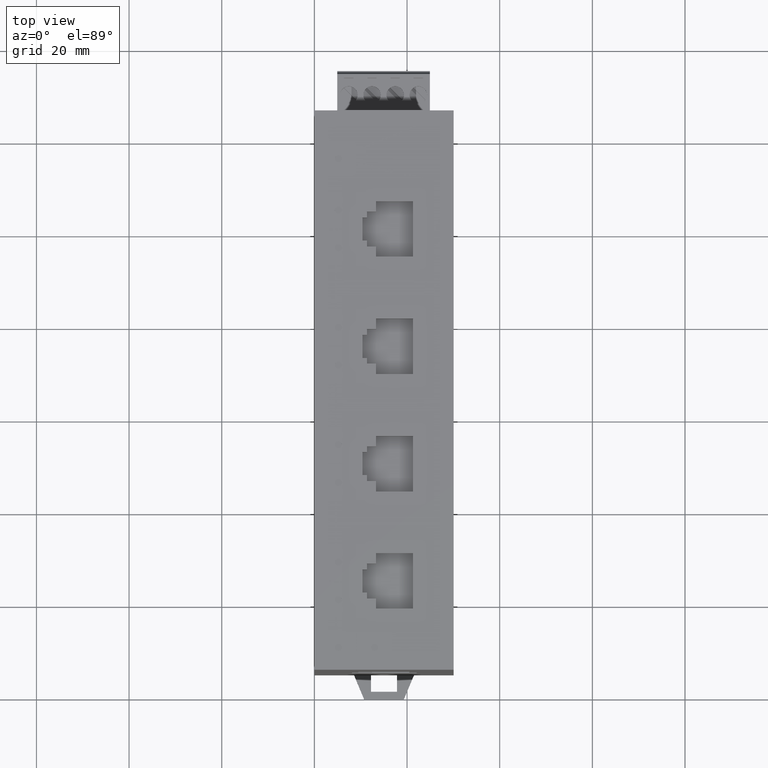
[diagram: clean part render]
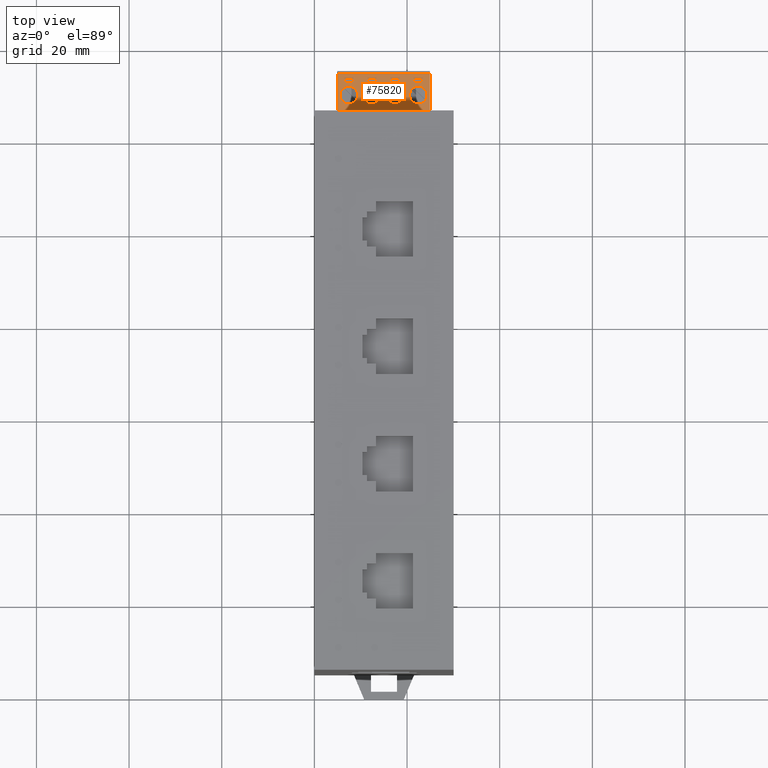
[diagram: same view with one face highlighted and labeled with its STEP entity id]
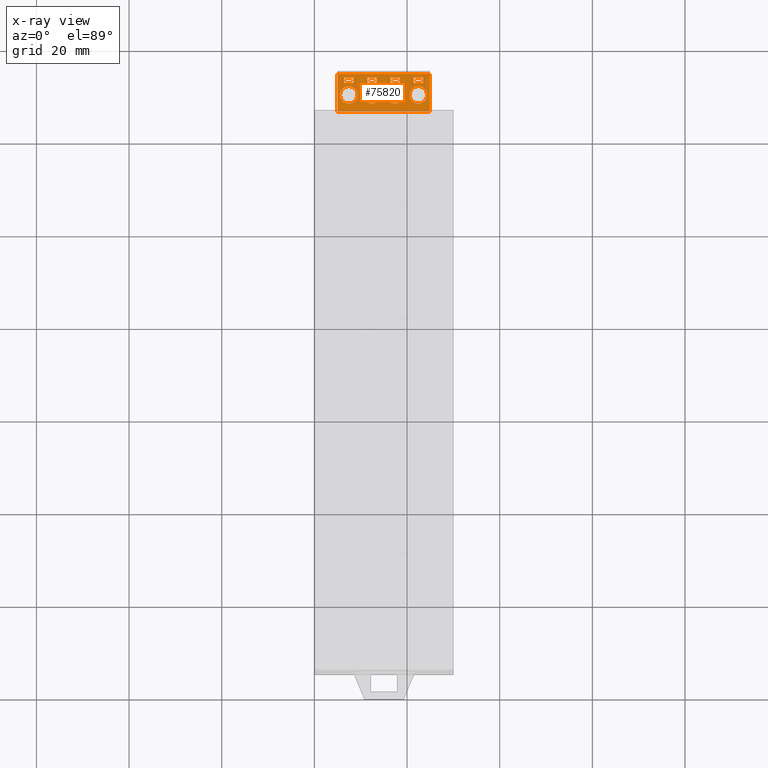
[diagram: x-ray of the same camera — body ghosted, the highlighted face saturated]
A machine part, top view. The second image highlights one B-rep face of the part: STEP entity #75820.
The next image is the same camera in x-ray: the body ghosted, the highlighted face saturated — about 6% of this face is hidden behind the body in this view.
In plain terms, the highlighted planar face has unit normal (-0, 0, -1).
Its self-contained STEP definition (entity closure, byte-faithful):
#49080=CARTESIAN_POINT('',(-36.5173015753009,61.9578968167968,
-28.209999993));
#49090=VERTEX_POINT('',#49080);
#49120=CARTESIAN_POINT('',(-34.6173015753009,61.9578968167968,
-28.209999993));
#49130=DIRECTION('',(-1.11022302462516E-16,6.6822090395713E-16,-1.));
#49140=DIRECTION('',(-1.,1.56125112837911E-17,1.11022302462516E-16));
#49150=AXIS2_PLACEMENT_3D('',#49120,#49130,#49140);
#49160=CIRCLE('',#49150,1.9);
#49170=CARTESIAN_POINT('',(-32.7173015753009,61.9578968167968,
-28.209999993));
#49180=VERTEX_POINT('',#49170);
#49190=EDGE_CURVE('',#49090,#49180,#49160,.T.);
#52170=CARTESIAN_POINT('',(-22.1173015753009,58.3578968167968,
-28.209999993));
#52180=VERTEX_POINT('',#52170);
#52210=CARTESIAN_POINT('',(-22.1173015753009,58.980295899349,
-28.209999993));
#52220=DIRECTION('',(1.56125112837912E-17,1.,6.6822090395713E-16));
#52230=VECTOR('',#52220,1.);
#52240=LINE('',#52210,#52230);
#52250=CARTESIAN_POINT('',(-22.1173015753009,66.4951511096155,
-28.209999993));
#52260=VERTEX_POINT('',#52250);
#52270=EDGE_CURVE('',#52180,#52260,#52240,.T.);
#54150=CARTESIAN_POINT('',(-42.1173015753009,58.3578968167968,
-28.209999993));
#54160=VERTEX_POINT('',#54150);
#54190=CARTESIAN_POINT('',(-32.3532757178843,58.3578968167968,
-28.209999993));
#54200=DIRECTION('',(-1.,1.56125112837911E-17,1.11022302462516E-16));
#54210=VECTOR('',#54200,1.);
#54220=LINE('',#54190,#54210);
#54230=EDGE_CURVE('',#52180,#54160,#54220,.T.);
#73130=CARTESIAN_POINT('',(-42.1173015753009,66.4951511096155,
-28.209999993));
#73140=VERTEX_POINT('',#73130);
#73170=CARTESIAN_POINT('',(-42.1173015753009,58.9822896835067,
-28.209999993));
#73180=DIRECTION('',(-1.56125112837912E-17,-1.,-6.6822090395713E-16));
#73190=VECTOR('',#73180,1.);
#73200=LINE('',#73170,#73190);
#73210=EDGE_CURVE('',#73140,#54160,#73200,.T.);
#73670=CARTESIAN_POINT('',(-32.3532757178843,66.4951511096155,
-28.209999993));
#73680=DIRECTION('',(-1.,1.56125112837911E-17,1.11022302462516E-16));
#73690=VECTOR('',#73680,1.);
#73700=LINE('',#73670,#73690);
#73710=EDGE_CURVE('',#52260,#73140,#73700,.T.);
#73850=CARTESIAN_POINT('',(-22.1173015753009,58.3578968167968,
-28.209999993));
#73860=DIRECTION('',(-1.11022302462516E-16,6.6822090395713E-16,-1.));
#73870=DIRECTION('',(-1.56125112837912E-17,-1.,-6.6822090395713E-16));
#73880=AXIS2_PLACEMENT_3D('',#73850,#73860,#73870);
#73890=PLANE('',#73880);
#73900=CARTESIAN_POINT('',(-39.6173015753009,61.9578968167968,
-28.209999993));
#73910=DIRECTION('',(-1.11022302462516E-16,6.6822090395713E-16,-1.));
#73920=DIRECTION('',(-1.,1.56125112837911E-17,1.11022302462516E-16));
#73930=AXIS2_PLACEMENT_3D('',#73900,#73910,#73920);
#73940=CIRCLE('',#73930,1.9);
#73950=CARTESIAN_POINT('',(-41.5173015753009,61.9578968167968,
-28.209999993));
#73960=VERTEX_POINT('',#73950);
#73970=CARTESIAN_POINT('',(-37.7173015753009,61.9578968167968,
-28.209999993));
#73980=VERTEX_POINT('',#73970);
#73990=EDGE_CURVE('',#73960,#73980,#73940,.T.);
#74000=ORIENTED_EDGE('',*,*,#73990,.T.);
#74010=EDGE_CURVE('',#73980,#73960,#73940,.T.);
#74020=ORIENTED_EDGE('',*,*,#74010,.T.);
#74030=EDGE_LOOP('',(#74020,#74000));
#74040=FACE_BOUND('',#74030,.T.);
#74050=CARTESIAN_POINT('',(-30.6173015753009,58.9822896835067,
-28.209999993));
#74060=DIRECTION('',(-1.56125112837912E-17,-1.,-6.6822090395713E-16));
#74070=VECTOR('',#74060,1.);
#74080=LINE('',#74050,#74070);
#74090=CARTESIAN_POINT('',(-30.6173015753009,65.6578968167968,
-28.209999993));
#74100=VERTEX_POINT('',#74090);
#74110=CARTESIAN_POINT('',(-30.6173015753009,64.5578968167968,
-28.209999993));
#74120=VERTEX_POINT('',#74110);
#74130=EDGE_CURVE('',#74100,#74120,#74080,.T.);
#74140=ORIENTED_EDGE('',*,*,#74130,.F.);
#74150=CARTESIAN_POINT('',(-32.3532757178843,64.5578968167968,
-28.209999993));
#74160=DIRECTION('',(1.,-1.56125112837911E-17,-1.11022302462516E-16));
#74170=VECTOR('',#74160,1.);
#74180=LINE('',#74150,#74170);
#74190=CARTESIAN_POINT('',(-28.6173015753009,64.5578968167968,
-28.209999993));
#74200=VERTEX_POINT('',#74190);
#74210=EDGE_CURVE('',#74120,#74200,#74180,.T.);
#74220=ORIENTED_EDGE('',*,*,#74210,.F.);
#74230=CARTESIAN_POINT('',(-28.6173015753009,58.9822896835067,
-28.209999993));
#74240=DIRECTION('',(1.56125112837912E-17,1.,6.6822090395713E-16));
#74250=VECTOR('',#74240,1.);
#74260=LINE('',#74230,#74250);
#74270=CARTESIAN_POINT('',(-28.6173015753009,65.6578968167968,
-28.209999993));
#74280=VERTEX_POINT('',#74270);
#74290=EDGE_CURVE('',#74200,#74280,#74260,.T.);
#74300=ORIENTED_EDGE('',*,*,#74290,.F.);
#74310=CARTESIAN_POINT('',(-32.3532757178843,65.6578968167968,
-28.209999993));
#74320=DIRECTION('',(-1.,1.56125112837911E-17,1.11022302462516E-16));
#74330=VECTOR('',#74320,1.);
#74340=LINE('',#74310,#74330);
#74350=EDGE_CURVE('',#74280,#74100,#74340,.T.);
#74360=ORIENTED_EDGE('',*,*,#74350,.F.);
#74370=EDGE_LOOP('',(#74360,#74300,#74220,#74140));
#74380=FACE_BOUND('',#74370,.T.);
#74390=CARTESIAN_POINT('',(-24.6173015753009,61.9578968167968,
-28.209999993));
#74400=DIRECTION('',(-1.11022302462516E-16,6.6822090395713E-16,-1.));
#74410=DIRECTION('',(-1.,1.56125112837911E-17,1.11022302462516E-16));
#74420=AXIS2_PLACEMENT_3D('',#74390,#74400,#74410);
#74430=CIRCLE('',#74420,1.9);
#74440=CARTESIAN_POINT('',(-26.5173015753009,61.9578968167968,
-28.209999993));
#74450=VERTEX_POINT('',#74440);
#74460=CARTESIAN_POINT('',(-22.7173015753009,61.9578968167968,
-28.209999993));
#74470=VERTEX_POINT('',#74460);
#74480=EDGE_CURVE('',#74450,#74470,#74430,.T.);
#74490=ORIENTED_EDGE('',*,*,#74480,.T.);
#74500=EDGE_CURVE('',#74470,#74450,#74430,.T.);
#74510=ORIENTED_EDGE('',*,*,#74500,.T.);
#74520=EDGE_LOOP('',(#74510,#74490));
#74530=FACE_BOUND('',#74520,.T.);
#74540=CARTESIAN_POINT('',(-25.6173015753009,58.9822896835067,
-28.209999993));
#74550=DIRECTION('',(-1.56125112837912E-17,-1.,-6.6822090395713E-16));
#74560=VECTOR('',#74550,1.);
#74570=LINE('',#74540,#74560);
#74580=CARTESIAN_POINT('',(-25.6173015753009,65.6578968167968,
-28.209999993));
#74590=VERTEX_POINT('',#74580);
#74600=CARTESIAN_POINT('',(-25.6173015753009,64.5578968167968,
-28.209999993));
#74610=VERTEX_POINT('',#74600);
#74620=EDGE_CURVE('',#74590,#74610,#74570,.T.);
#74630=ORIENTED_EDGE('',*,*,#74620,.F.);
#74640=CARTESIAN_POINT('',(-32.3532757178843,64.5578968167968,
-28.209999993));
#74650=DIRECTION('',(1.,-1.56125112837911E-17,-1.11022302462516E-16));
#74660=VECTOR('',#74650,1.);
#74670=LINE('',#74640,#74660);
#74680=CARTESIAN_POINT('',(-23.6173015753009,64.5578968167968,
-28.209999993));
#74690=VERTEX_POINT('',#74680);
#74700=EDGE_CURVE('',#74610,#74690,#74670,.T.);
#74710=ORIENTED_EDGE('',*,*,#74700,.F.);
#74720=CARTESIAN_POINT('',(-23.6173015753009,58.9822896835067,
-28.209999993));
#74730=DIRECTION('',(1.56125112837912E-17,1.,6.6822090395713E-16));
#74740=VECTOR('',#74730,1.);
#74750=LINE('',#74720,#74740);
#74760=CARTESIAN_POINT('',(-23.6173015753009,65.6578968167968,
-28.209999993));
#74770=VERTEX_POINT('',#74760);
#74780=EDGE_CURVE('',#74690,#74770,#74750,.T.);
#74790=ORIENTED_EDGE('',*,*,#74780,.F.);
#74800=CARTESIAN_POINT('',(-32.3532757178843,65.6578968167968,
-28.209999993));
#74810=DIRECTION('',(-1.,1.56125112837911E-17,1.11022302462516E-16));
#74820=VECTOR('',#74810,1.);
#74830=LINE('',#74800,#74820);
#74840=EDGE_CURVE('',#74770,#74590,#74830,.T.);
#74850=ORIENTED_EDGE('',*,*,#74840,.F.);
#74860=EDGE_LOOP('',(#74850,#74790,#74710,#74630));
#74870=FACE_BOUND('',#74860,.T.);
#74880=CARTESIAN_POINT('',(-38.6173015753009,58.9822896835067,
-28.209999993));
#74890=DIRECTION('',(1.56125112837912E-17,1.,6.6822090395713E-16));
#74900=VECTOR('',#74890,1.);
#74910=LINE('',#74880,#74900);
#74920=CARTESIAN_POINT('',(-38.6173015753009,64.5578968167968,
-28.209999993));
#74930=VERTEX_POINT('',#74920);
#74940=CARTESIAN_POINT('',(-38.6173015753009,65.6578968167968,
-28.209999993));
#74950=VERTEX_POINT('',#74940);
#74960=EDGE_CURVE('',#74930,#74950,#74910,.T.);
#74970=ORIENTED_EDGE('',*,*,#74960,.F.);
#74980=CARTESIAN_POINT('',(-32.3532757178843,65.6578968167968,
-28.209999993));
#74990=DIRECTION('',(-1.,1.56125112837911E-17,1.11022302462516E-16));
#75000=VECTOR('',#74990,1.);
#75010=LINE('',#74980,#75000);
#75020=CARTESIAN_POINT('',(-40.6173015753009,65.6578968167968,
-28.209999993));
#75030=VERTEX_POINT('',#75020);
#75040=EDGE_CURVE('',#74950,#75030,#75010,.T.);
#75050=ORIENTED_EDGE('',*,*,#75040,.F.);
#75060=CARTESIAN_POINT('',(-40.6173015753009,58.9822896835067,
-28.209999993));
#75070=DIRECTION('',(-1.56125112837912E-17,-1.,-6.6822090395713E-16));
#75080=VECTOR('',#75070,1.);
#75090=LINE('',#75060,#75080);
#75100=CARTESIAN_POINT('',(-40.6173015753009,64.5578968167968,
-28.209999993));
#75110=VERTEX_POINT('',#75100);
#75120=EDGE_CURVE('',#75030,#75110,#75090,.T.);
#75130=ORIENTED_EDGE('',*,*,#75120,.F.);
#75140=CARTESIAN_POINT('',(-32.3532757178843,64.5578968167968,
-28.209999993));
#75150=DIRECTION('',(1.,-1.56125112837911E-17,-1.11022302462516E-16));
#75160=VECTOR('',#75150,1.);
#75170=LINE('',#75140,#75160);
#75180=EDGE_CURVE('',#75110,#74930,#75170,.T.);
#75190=ORIENTED_EDGE('',*,*,#75180,.F.);
#75200=EDGE_LOOP('',(#75190,#75130,#75050,#74970));
#75210=FACE_BOUND('',#75200,.T.);
#75220=CARTESIAN_POINT('',(-32.3532757178843,64.5578968167968,
-28.209999993));
#75230=DIRECTION('',(1.,-1.56125112837911E-17,-1.11022302462516E-16));
#75240=VECTOR('',#75230,1.);
#75250=LINE('',#75220,#75240);
#75260=CARTESIAN_POINT('',(-35.6173015753009,64.5578968167968,
-28.209999993));
#75270=VERTEX_POINT('',#75260);
#75280=CARTESIAN_POINT('',(-33.6173015753009,64.5578968167968,
-28.209999993));
#75290=VERTEX_POINT('',#75280);
#75300=EDGE_CURVE('',#75270,#75290,#75250,.T.);
#75310=ORIENTED_EDGE('',*,*,#75300,.F.);
#75320=CARTESIAN_POINT('',(-33.6173015753009,58.9822896835067,
-28.209999993));
#75330=DIRECTION('',(1.56125112837912E-17,1.,6.6822090395713E-16));
#75340=VECTOR('',#75330,1.);
#75350=LINE('',#75320,#75340);
#75360=CARTESIAN_POINT('',(-33.6173015753009,65.6578968167968,
-28.209999993));
#75370=VERTEX_POINT('',#75360);
#75380=EDGE_CURVE('',#75290,#75370,#75350,.T.);
#75390=ORIENTED_EDGE('',*,*,#75380,.F.);
#75400=CARTESIAN_POINT('',(-32.3532757178843,65.6578968167968,
-28.209999993));
#75410=DIRECTION('',(-1.,1.56125112837911E-17,1.11022302462516E-16));
#75420=VECTOR('',#75410,1.);
#75430=LINE('',#75400,#75420);
#75440=CARTESIAN_POINT('',(-35.6173015753009,65.6578968167968,
-28.209999993));
#75450=VERTEX_POINT('',#75440);
#75460=EDGE_CURVE('',#75370,#75450,#75430,.T.);
#75470=ORIENTED_EDGE('',*,*,#75460,.F.);
#75480=CARTESIAN_POINT('',(-35.6173015753009,58.9822896835067,
-28.209999993));
#75490=DIRECTION('',(-1.56125112837912E-17,-1.,-6.6822090395713E-16));
#75500=VECTOR('',#75490,1.);
#75510=LINE('',#75480,#75500);
#75520=EDGE_CURVE('',#75450,#75270,#75510,.T.);
#75530=ORIENTED_EDGE('',*,*,#75520,.F.);
#75540=EDGE_LOOP('',(#75530,#75470,#75390,#75310));
#75550=FACE_BOUND('',#75540,.T.);
#75560=CARTESIAN_POINT('',(-29.6173015753009,61.9578968167968,
-28.209999993));
#75570=DIRECTION('',(-1.11022302462516E-16,6.6822090395713E-16,-1.));
#75580=DIRECTION('',(-1.,1.56125112837911E-17,1.11022302462516E-16));
#75590=AXIS2_PLACEMENT_3D('',#75560,#75570,#75580);
#75600=CIRCLE('',#75590,1.9);
#75610=CARTESIAN_POINT('',(-31.5173015753009,61.9578968167968,
-28.209999993));
#75620=VERTEX_POINT('',#75610);
#75630=CARTESIAN_POINT('',(-27.7173015753009,61.9578968167968,
-28.209999993));
#75640=VERTEX_POINT('',#75630);
#75650=EDGE_CURVE('',#75620,#75640,#75600,.T.);
#75660=ORIENTED_EDGE('',*,*,#75650,.T.);
#75670=EDGE_CURVE('',#75640,#75620,#75600,.T.);
#75680=ORIENTED_EDGE('',*,*,#75670,.T.);
#75690=EDGE_LOOP('',(#75680,#75660));
#75700=FACE_BOUND('',#75690,.T.);
#75710=ORIENTED_EDGE('',*,*,#49190,.T.);
#75720=EDGE_CURVE('',#49180,#49090,#49160,.T.);
#75730=ORIENTED_EDGE('',*,*,#75720,.T.);
#75740=EDGE_LOOP('',(#75730,#75710));
#75750=FACE_BOUND('',#75740,.T.);
#75760=ORIENTED_EDGE('',*,*,#52270,.T.);
#75770=ORIENTED_EDGE('',*,*,#54230,.F.);
#75780=ORIENTED_EDGE('',*,*,#73210,.T.);
#75790=ORIENTED_EDGE('',*,*,#73710,.T.);
#75800=EDGE_LOOP('',(#75790,#75780,#75770,#75760));
#75810=FACE_OUTER_BOUND('',#75800,.T.);
#75820=ADVANCED_FACE('',(#74040,#74380,#74530,#74870,#75210,#75550,
#75700,#75750,#75810),#73890,.F.);